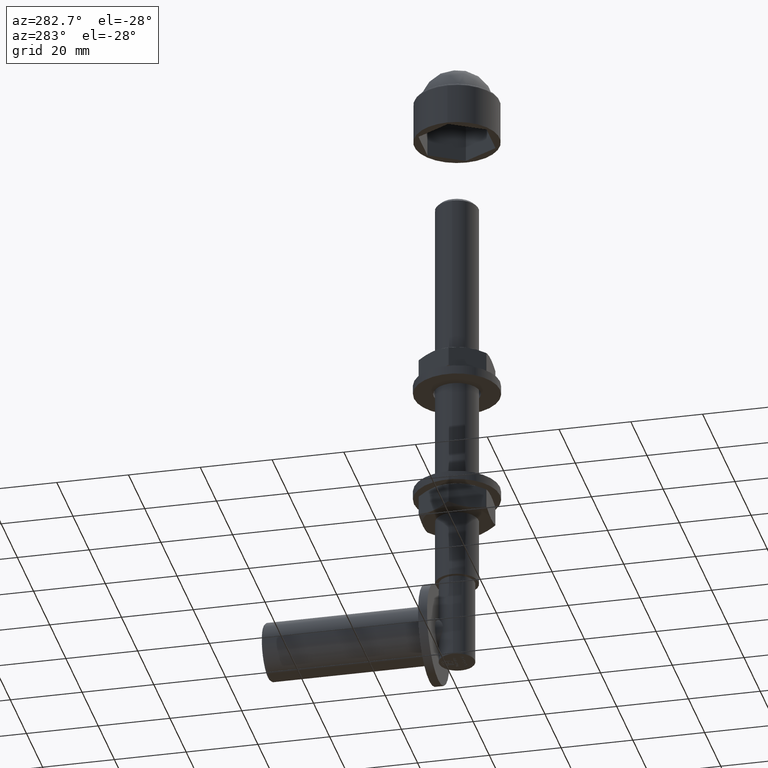
[diagram: clean part render]
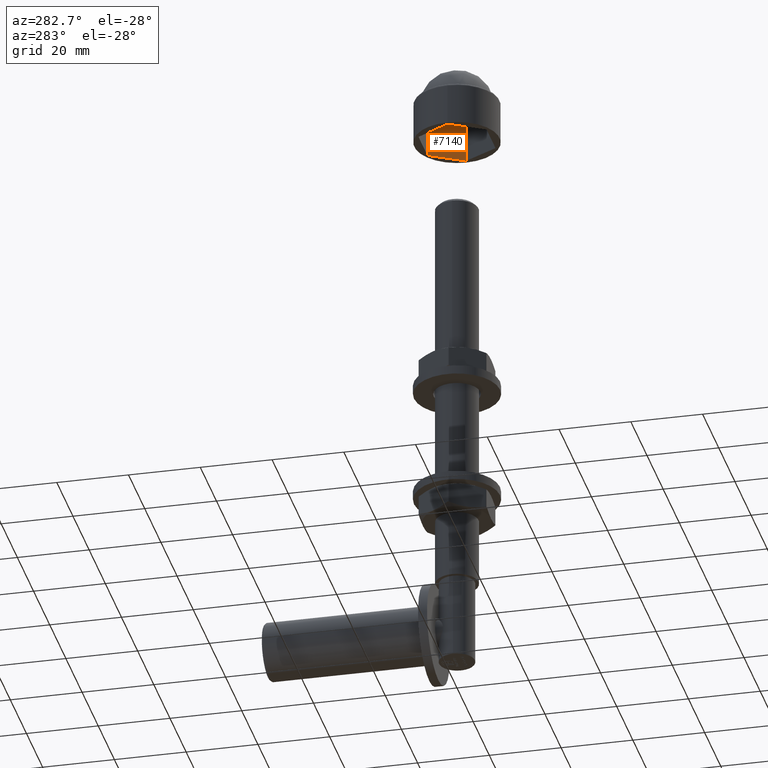
[diagram: same view with one face highlighted and labeled with its STEP entity id]
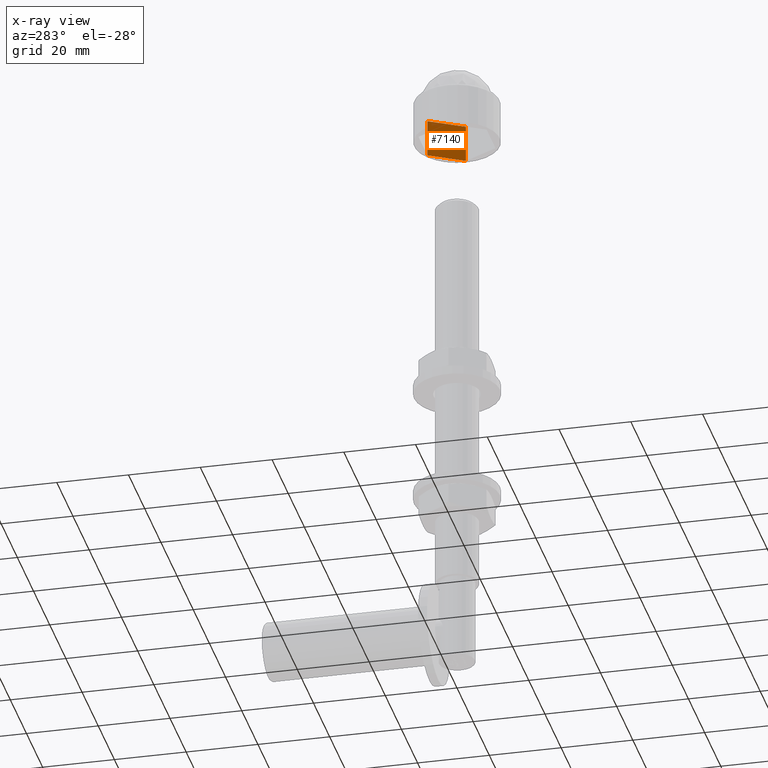
[diagram: x-ray of the same camera — body ghosted, the highlighted face saturated]
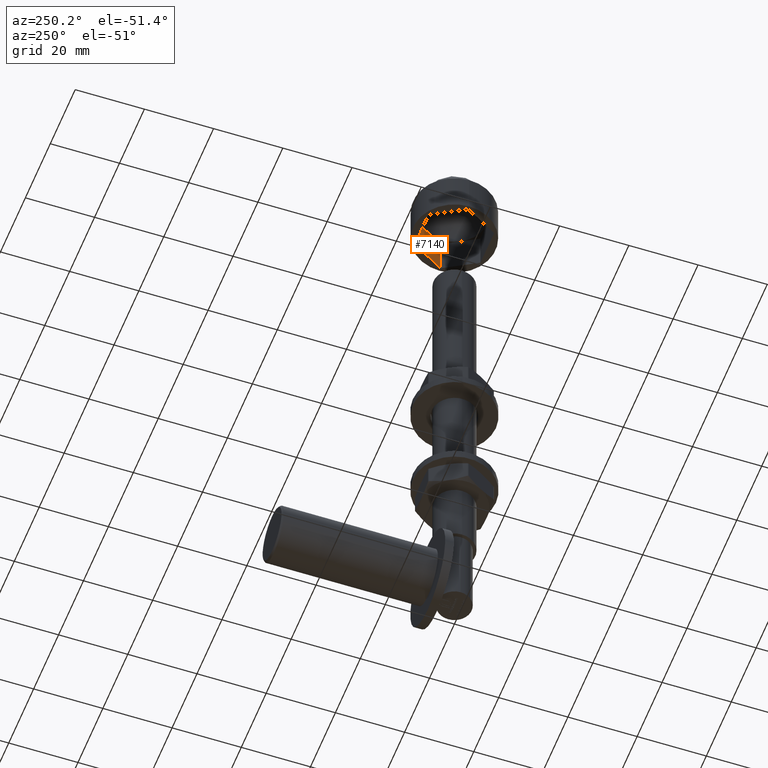
[diagram: same view with one face highlighted and labeled with its STEP entity id]
A machine part, auxiliary view. The second image highlights one B-rep face of the part: STEP entity #7140.
The next image is the same camera in x-ray: the body ghosted, the highlighted face saturated — about 4% of this face is hidden behind the body in this view.
A second angle (auxiliary view) of the same face is appended — the face is thin or edge-on in the first view.
In plain terms, the highlighted planar face has unit normal (0.866, 0.5, -0).
Its self-contained STEP definition (entity closure, byte-faithful):
#417 = VECTOR ( 'NONE', #6881, 1000.000000000000000 ) ;
#473 = ORIENTED_EDGE ( 'NONE', *, *, #7670, .T. ) ;
#493 = EDGE_CURVE ( 'NONE', #12682, #2758, #11012, .T. ) ;
#695 = LINE ( 'NONE', #13006, #5658 ) ;
#817 = EDGE_CURVE ( 'NONE', #4218, #1755, #11903, .T. ) ;
#1084 = CARTESIAN_POINT ( 'NONE',  ( 10.96965511460288845, 0.000000000000000000, -2.289671540841869901E-16 ) ) ;
#1314 = LINE ( 'NONE', #7866, #10297 ) ;
#1755 = VERTEX_POINT ( 'NONE', #1084 ) ;
#1971 = AXIS2_PLACEMENT_3D ( 'NONE', #4105, #11081, #12245 ) ;
#2188 = EDGE_CURVE ( 'NONE', #5230, #1755, #695, .T. ) ;
#2758 = VERTEX_POINT ( 'NONE', #10390 ) ;
#3234 = CARTESIAN_POINT ( 'NONE',  ( 10.96965511460288845, 10.50000000000000000, -2.289671540841869901E-16 ) ) ;
#3251 = CARTESIAN_POINT ( 'NONE',  ( 5.484827557301446888, -6.721244214731236963E-25, -9.499999999999996447 ) ) ;
#3638 = DIRECTION ( 'NONE',  ( -0.000000000000000000, -1.000000000000000000, -0.000000000000000000 ) ) ;
#4105 = CARTESIAN_POINT ( 'NONE',  ( 5.484827557301446888, 10.50000000000000000, -9.499999999999996447 ) ) ;
#4218 = VERTEX_POINT ( 'NONE', #3251 ) ;
#4411 = ORIENTED_EDGE ( 'NONE', *, *, #2188, .F. ) ;
#4831 = VECTOR ( 'NONE', #6526, 1000.000000000000000 ) ;
#5230 = VERTEX_POINT ( 'NONE', #3234 ) ;
#5658 = VECTOR ( 'NONE', #3638, 1000.000000000000000 ) ;
#6430 = EDGE_CURVE ( 'NONE', #2758, #5230, #10485, .T. ) ;
#6526 = DIRECTION ( 'NONE',  ( 0.4999999999999998890, 0.000000000000000000, 0.8660254037844387076 ) ) ;
#6881 = DIRECTION ( 'NONE',  ( 0.4999999999999998890, 0.000000000000000000, 0.8660254037844387076 ) ) ;
#7140 = ADVANCED_FACE ( 'NONE', ( #14328 ), #7722, .F. ) ;
#7330 = CARTESIAN_POINT ( 'NONE',  ( 5.484827557301446888, 10.50000000000000000, -9.499999999999996447 ) ) ;
#7662 = ORIENTED_EDGE ( 'NONE', *, *, #493, .F. ) ;
#7670 = EDGE_CURVE ( 'NONE', #12682, #4218, #1314, .T. ) ;
#7722 = PLANE ( 'NONE',  #1971 ) ;
#7866 = CARTESIAN_POINT ( 'NONE',  ( 5.484827557301446888, 10.50000000000000000, -9.499999999999996447 ) ) ;
#8402 = CARTESIAN_POINT ( 'NONE',  ( 5.484827557301446888, 0.000000000000000000, -9.499999999999996447 ) ) ;
#8841 = VECTOR ( 'NONE', #14316, 1000.000000000000000 ) ;
#10219 = DIRECTION ( 'NONE',  ( -0.000000000000000000, -1.000000000000000000, -0.000000000000000000 ) ) ;
#10297 = VECTOR ( 'NONE', #10219, 1000.000000000000000 ) ;
#10390 = CARTESIAN_POINT ( 'NONE',  ( 8.227241335952166779, 10.50000000000000000, -4.749999999999996447 ) ) ;
#10485 = LINE ( 'NONE', #14949, #417 ) ;
#11012 = LINE ( 'NONE', #7330, #4831 ) ;
#11081 = DIRECTION ( 'NONE',  ( 0.8660254037844387076, 0.000000000000000000, -0.4999999999999999445 ) ) ;
#11424 = EDGE_LOOP ( 'NONE', ( #12282, #4411, #12586, #7662, #473 ) ) ;
#11727 = CARTESIAN_POINT ( 'NONE',  ( 5.484827557301446888, 10.50000000000000000, -9.499999999999996447 ) ) ;
#11903 = LINE ( 'NONE', #8402, #8841 ) ;
#12245 = DIRECTION ( 'NONE',  ( -0.4999999999999998890, 0.000000000000000000, -0.8660254037844385966 ) ) ;
#12282 = ORIENTED_EDGE ( 'NONE', *, *, #817, .T. ) ;
#12586 = ORIENTED_EDGE ( 'NONE', *, *, #6430, .F. ) ;
#12682 = VERTEX_POINT ( 'NONE', #11727 ) ;
#13006 = CARTESIAN_POINT ( 'NONE',  ( 10.96965511460288845, 10.50000000000000000, -2.289671540841869901E-16 ) ) ;
#14316 = DIRECTION ( 'NONE',  ( 0.4999999999999998890, 0.000000000000000000, 0.8660254037844387076 ) ) ;
#14328 = FACE_OUTER_BOUND ( 'NONE', #11424, .T. ) ;
#14949 = CARTESIAN_POINT ( 'NONE',  ( 5.484827557301446888, 10.50000000000000000, -9.499999999999996447 ) ) ;